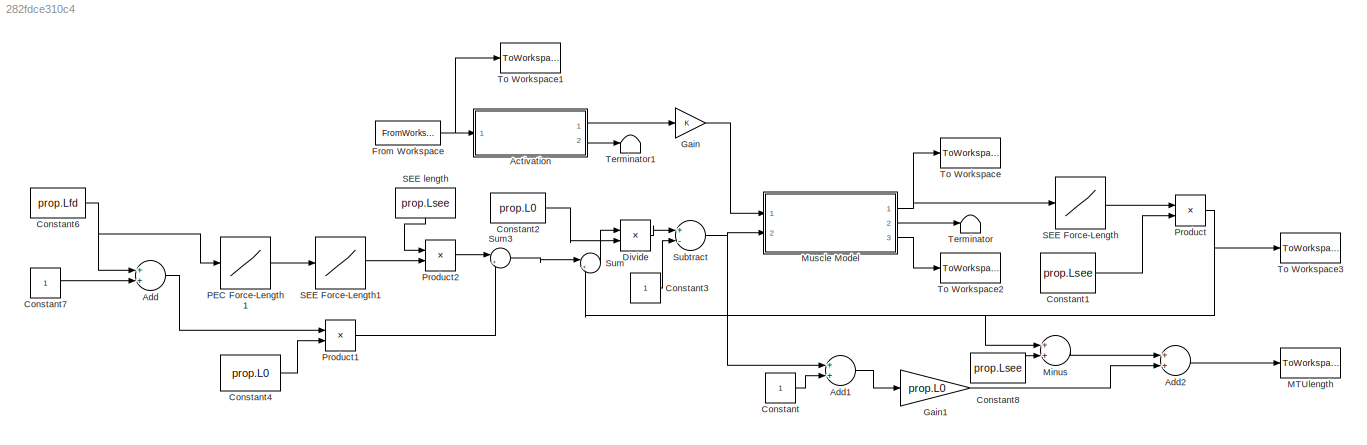
MODEL slx_282fdce310c4
KIND model
CONFIG AbsTol = auto
CONFIG EnableMultiTasking = on
CONFIG FixedStep = 0.00005
CONFIG MaxStep = 0.1
CONFIG MinStep = auto
CONFIG RelTol = 1e-6
CONFIG SampleTimeConstraint = Unconstrained
CONFIG Solver = ode45
CONFIG SolverName = ode45
CONFIG StartTime = 0.0
CONFIG StopTime = 2
BLOCK [Lookup]  PEC Force-Length1
  InputValues = [-0.400000000000000\n-0.200000000000000\n-0.0200000000000000\n-0.0181000000000000\n-0.0162000000000000\n-0.0143000000000000\n-0.0124000000000000\n-0.0105000000000001\n-0.00860000000000005\n-0.00670000000000004\n-0.00480000000000003\n-0.00290000000000001\n-0.00100000000000000\n0.000899999999999901\n0.00279999999999991\n0.00469999999999993\n0.00659999999999994\n0.00849999999999995\n0.0104000000000000\n0.01230000000000...<+5143ch>
  LookUpMeth = Interpolation-Use End Values
  Table = [0\n0\n0\n0.000250430632326719\n0.000504222699518002\n0.000761421320832001\n0.00102207222114546\n0.00128622173908269\n0.00155391683525374\n0.00182520510060293\n0.00210013476486974\n0.00237875470516303\n0.00266111445465043\n0.00294726421136441\n0.00323725484712650\n0.00353113791659126\n0.00382896566641171\n0.00413079104452780\n0.00443666770957945\n0.00474665004044605\n0.00506079314591397\n0.00537915287447376\n0.00570178...<+5180ch>
BLOCK [Lookup]  SEE Force-Length
  InputValues = [0\n0.000442588372362627\n0.00141523090125158\n0.00279339495313245\n0.00452537533502198\n0.00657919407104800\n0.00893222484804500\n0.0115672311194430\n0.0144704457093994\n0.0176305024068561\n0.0210377843976648\n0.0246839997310470\n0.0285618904861856\n0.0326650255195540\n0.0369876479916691\n0.0415245602039597\n0.0462710346715712\n0.0512227441486924\n0.0563757056643364\n0.0617262351241129\n0.0672709100207659\n0.07300653...<+1419ch>
  Table = [0\n0.000500000000000000\n0.00100000000000000\n0.00150000000000000\n0.00200000000000000\n0.00250000000000000\n0.00300000000000000\n0.00350000000000000\n0.00400000000000000\n0.00450000000000000\n0.00500000000000000\n0.00550000000000000\n0.00600000000000000\n0.00650000000000000\n0.00700000000000000\n0.00750000000000000\n0.00800000000000000\n0.00850000000000000\n0.00900000000000000\n0.00950000000000000\n0.01000000000000...<+1534ch>
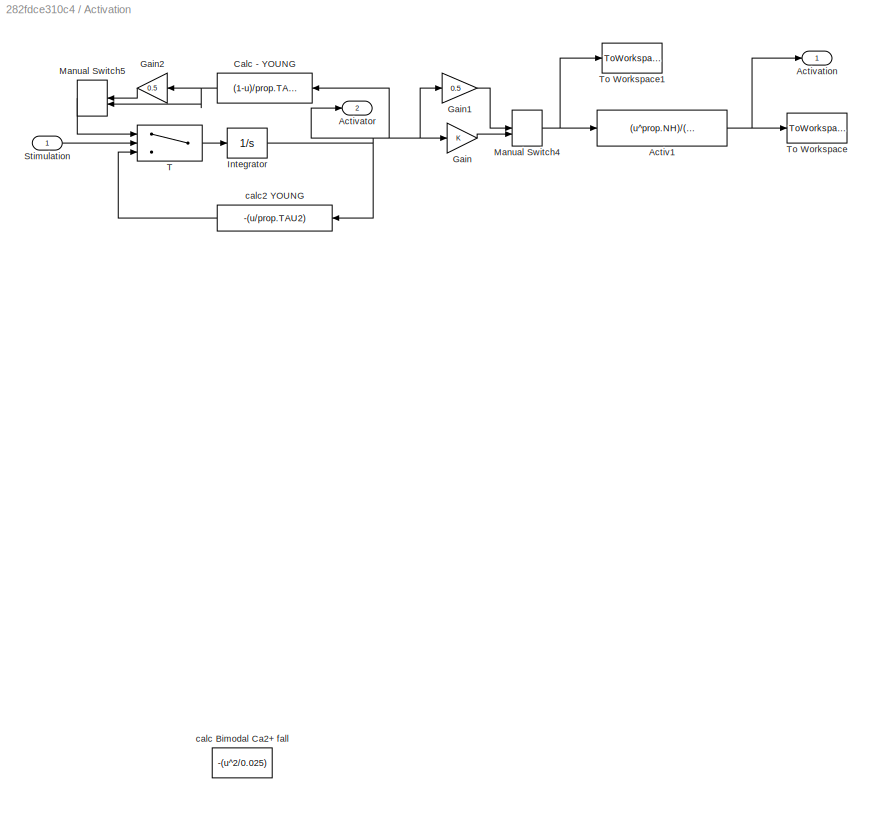
BLOCK [SubSystem] Activation
  Ports = [1, 2]
  RequestExecContextInheritance = off
BLOCK [Fcn] Activation/Activ1
  Expr = (u^prop.NH)/(prop.PCA50^prop.NH+u^prop.NH)
BLOCK [Outport] Activation/Activation
  IconDisplay = Port number
BLOCK [Outport] Activation/Activator
  IconDisplay = Port number
  Port = 2
BLOCK [Fcn] Activation/Calc - YOUNG
  Expr = (1-u)/prop.TAU1
BLOCK [Gain] Activation/Gain
  OutDataTypeStr = Inherit: Inherit via internal rule
  ParamDataTypeStr = Inherit: Inherit via internal rule
  SaturateOnIntegerOverflow = off
BLOCK [Gain] Activation/Gain1
  Gain = 0.5
  OutDataTypeStr = Inherit: Inherit via internal rule
  ParamDataTypeStr = Inherit: Inherit via internal rule
  SaturateOnIntegerOverflow = off
BLOCK [Gain] Activation/Gain2
  Gain = 0.5
  OutDataTypeStr = Inherit: Inherit via internal rule
  ParamDataTypeStr = Inherit: Inherit via internal rule
  SaturateOnIntegerOverflow = off
BLOCK [Integrator] Activation/Integrator
  Ports = [1, 1]
BLOCK [ManualSwitch] Activation/Manual Switch4
  CurrentSetting = 0
BLOCK [ManualSwitch] Activation/Manual Switch5
  CurrentSetting = 0
BLOCK [Inport] Activation/Stimulation
  IconDisplay = Port number
BLOCK [Switch] Activation/T
  Criteria = u2 > Threshold
  Threshold = 0.01
BLOCK [ToWorkspace] Activation/To Workspace
  FixptAsFi = on
  MaxDataPoints = inf
  Ports = [1]
  SampleTime = -1
  SaveFormat = Structure
  VariableName = Out_Activation
BLOCK [ToWorkspace] Activation/To Workspace1
  FixptAsFi = on
  MaxDataPoints = inf
  Ports = [1]
  SampleTime = -1
  SaveFormat = Structure
  VariableName = Out_Activator
BLOCK [Fcn] Activation/calc Bimodal Ca2+ fall
  Commented = on
  Expr = -(u^2/0.025)
BLOCK [Fcn] Activation/calc2 YOUNG
  Expr = -(u/prop.TAU2)
BLOCK [Sum] Add
  InputSameDT = off
  OutDataTypeStr = Inherit: Inherit via internal rule
  Ports = [2, 1]
  SaturateOnIntegerOverflow = off
BLOCK [Sum] Add1
  InputSameDT = off
  OutDataTypeStr = Inherit: Inherit via internal rule
  Ports = [2, 1]
  SaturateOnIntegerOverflow = off
BLOCK [Sum] Add2
  InputSameDT = off
  OutDataTypeStr = Inherit: Inherit via internal rule
  Ports = [2, 1]
  SaturateOnIntegerOverflow = off
BLOCK [Constant] Constant
BLOCK [Constant] Constant1
  Value = prop.Lsee
BLOCK [Constant] Constant2
  Value = prop.L0
BLOCK [Constant] Constant3
BLOCK [Constant] Constant4
  Value = prop.L0
BLOCK [Constant] Constant6
  Value = prop.Lfd
BLOCK [Constant] Constant7
BLOCK [Constant] Constant8
  Value = prop.Lsee
BLOCK [Product] Divide
  InputSameDT = off
  Inputs = */
  OutDataTypeStr = Inherit: Inherit via internal rule
  Ports = [2, 1]
  RndMeth = Floor
  SaturateOnIntegerOverflow = off
BLOCK [FromWorkspace] From Workspace
  SampleTime = 1/10000
  VariableName = data_in
  ZeroCross = on
BLOCK [Gain] Gain
  OutDataTypeStr = Inherit: Inherit via internal rule
  ParamDataTypeStr = Inherit: Inherit via internal rule
  SaturateOnIntegerOverflow = off
BLOCK [Gain] Gain1
  Gain = prop.L0
  OutDataTypeStr = Inherit: Inherit via internal rule
  ParamDataTypeStr = Inherit: Inherit via internal rule
  SaturateOnIntegerOverflow = off
BLOCK [ToWorkspace] MTUlength
  FixptAsFi = on
  MaxDataPoints = inf
  Ports = [1]
  SampleTime = -1
  SaveFormat = Structure With Time
  VariableName = Out_MTUlength
BLOCK [Sum] Minus
  InputSameDT = off
  OutDataTypeStr = Inherit: Inherit via internal rule
  Ports = [2, 1]
  SaturateOnIntegerOverflow = off
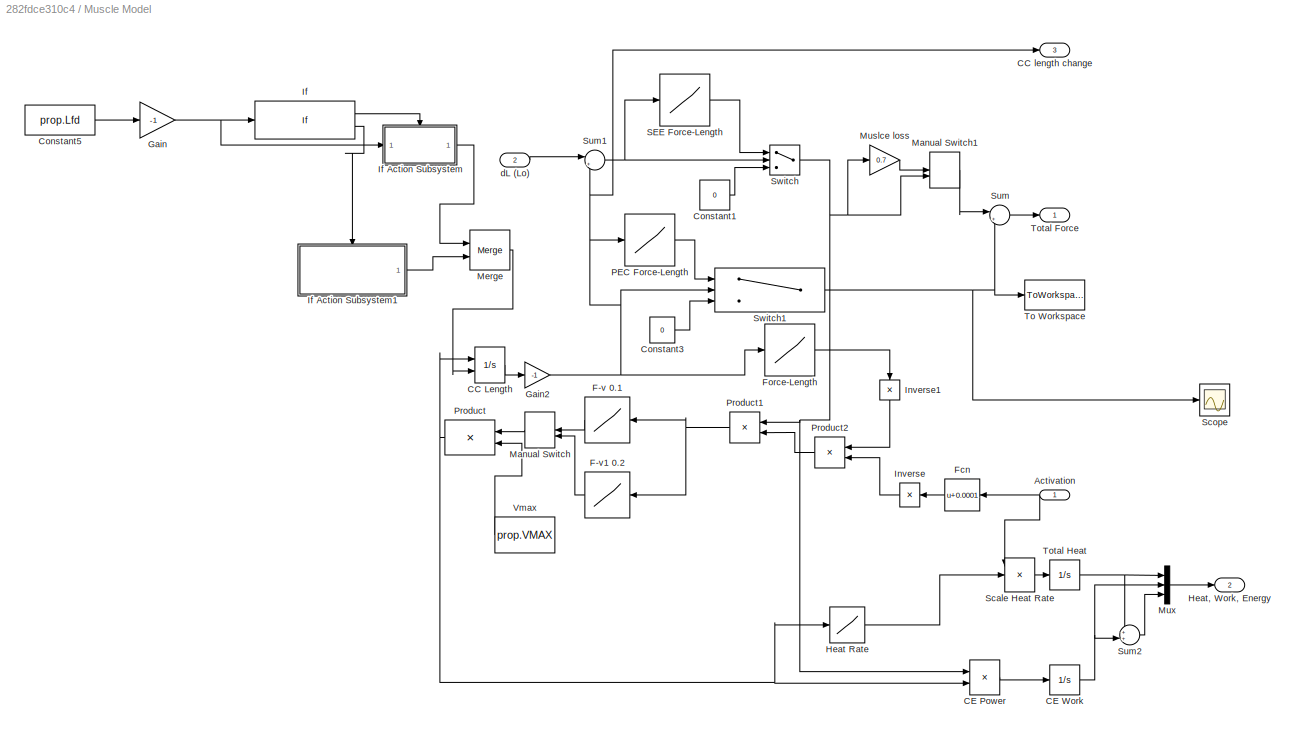
BLOCK [SubSystem] Muscle Model
  Ports = [2, 3]
  RequestExecContextInheritance = off
BLOCK [Lookup] Muscle Model/ PEC Force-Length
  InputValues = [-0.400000000000000\n-0.200000000000000\n-0.0200000000000000\n-0.0181000000000000\n-0.0162000000000000\n-0.0143000000000000\n-0.0124000000000000\n-0.0105000000000001\n-0.00860000000000005\n-0.00670000000000004\n-0.00480000000000003\n-0.00290000000000001\n-0.00100000000000000\n0.000899999999999901\n0.00279999999999991\n0.00469999999999993\n0.00659999999999994\n0.00849999999999995\n0.0104000000000000\n0.01230000000000...<+5143ch>
  LookUpMeth = Interpolation-Use End Values
  Table = [0\n0\n0\n0.000250430632326719\n0.000504222699518002\n0.000761421320832001\n0.00102207222114546\n0.00128622173908269\n0.00155391683525374\n0.00182520510060293\n0.00210013476486974\n0.00237875470516303\n0.00266111445465043\n0.00294726421136441\n0.00323725484712650\n0.00353113791659126\n0.00382896566641171\n0.00413079104452780\n0.00443666770957945\n0.00474665004044605\n0.00506079314591397\n0.00537915287447376\n0.00570178...<+5180ch>
BLOCK [Lookup] Muscle Model/ SEE Force-Length
  InputValues = [0	0.000307500000000000	0.000615000000000000	0.000922500000000000	0.00123000000000000	0.00153750000000000	0.00184500000000000	0.00215250000000000	0.00246000000000000	0.00276750000000000	0.00307500000000000	0.00338250000000000	0.00369000000000000	0.00399750000000000	0.00430500000000000	0.00461250000000000	0.00492000000000000	0.00522750000000000	0.00553500000000000	0.00584250000000000	0.006150000000...<+2967ch>
  Table = [0	0.00315148521792809	0.00639307550345235	0.00972214173787414	0.0131361852684884	0.0166330114108767	0.0202109175533428	0.0238680843222504	0.0276028559259340	0.0314140019968368	0.0353002070911181	0.0392601876342754	0.0432929308496600	0.0473975346467821	0.0515729721321880	0.0558183428644246	0.0601330833213969	0.0645163532067705	0.0689673633359375	0.0734857032929654	0.0780707374529544	0.082721799913...<+2760ch>
BLOCK [Inport] Muscle Model/Activation
  IconDisplay = Port number
BLOCK [Integrator] Muscle Model/CC Length
  InitialConditionSource = external
  Ports = [2, 1]
  ZeroCross = off
BLOCK [Outport] Muscle Model/CC length change
  IconDisplay = Port number
  Port = 3
BLOCK [Product] Muscle Model/CE Power
  Commented = on
  Ports = [2, 1]
  RndMeth = Floor
BLOCK [Integrator] Muscle Model/CE Work
  Commented = on
  Ports = [1, 1]
BLOCK [Constant] Muscle Model/Constant1
  Value = 0
BLOCK [Constant] Muscle Model/Constant3
  Value = 0
BLOCK [Constant] Muscle Model/Constant5
  Value = prop.Lfd
BLOCK [Lookup] Muscle Model/F-v 0.1
  InputValues = [0\n0.0200000000000000\n0.0400000000000000\n0.0600000000000000\n0.0800000000000000\n0.100000000000000\n0.120000000000000\n0.140000000000000\n0.160000000000000\n0.180000000000000\n0.200000000000000\n0.220000000000000\n0.240000000000000\n0.260000000000000\n0.280000000000000\n0.300000000000000\n0.320000000000000\n0.340000000000000\n0.360000000000000\n0.380000000000000\n0.400000000000000\n0.420000000000000\n0.4400000000000...<+2193ch>
  OutDataTypeStr = double
  Table = [1\n0.816666666666667\n0.685714285714286\n0.587500000000000\n0.511111111111111\n0.450000000000000\n0.400000000000000\n0.358333333333333\n0.323076923076923\n0.292857142857143\n0.266666666666667\n0.243750000000000\n0.223529411764706\n0.205555555555556\n0.189473684210526\n0.175000000000000\n0.161904761904762\n0.150000000000000\n0.139130434782609\n0.129166666666667\n0.120000000000000\n0.111538461538462\n0.103703703703704\n0...<+2413ch>
BLOCK [Lookup] Muscle Model/F-v1 0.2
  InputValues = [0\n0.0200000000000000\n0.0400000000000000\n0.0600000000000000\n0.0800000000000000\n0.100000000000000\n0.120000000000000\n0.140000000000000\n0.160000000000000\n0.180000000000000\n0.200000000000000\n0.220000000000000\n0.240000000000000\n0.260000000000000\n0.280000000000000\n0.300000000000000\n0.320000000000000\n0.340000000000000\n0.360000000000000\n0.380000000000000\n0.400000000000000\n0.420000000000000\n0.4400000000000...<+2193ch>
  OutDataTypeStr = double
  Table = [1\n0.890909090909091\n0.800000000000000\n0.723076923076923\n0.657142857142857\n0.600000000000000\n0.550000000000000\n0.505882352941176\n0.466666666666667\n0.431578947368421\n0.400000000000000\n0.371428571428571\n0.345454545454546\n0.321739130434783\n0.300000000000000\n0.280000000000000\n0.261538461538462\n0.244444444444444\n0.228571428571429\n0.213793103448276\n0.200000000000000\n0.187096774193548\n0.175000000000000\n0...<+2403ch>
BLOCK [Fcn] Muscle Model/Fcn
  Expr = u+0.0001
BLOCK [Lookup] Muscle Model/Force-Length
  InputValues = [-0.390887290167866	-0.386678412372143	-0.382469534576421	-0.378260656780698	-0.374051778984975	-0.369842901189253	-0.365634023393530	-0.361425145597808	-0.357216267802085	-0.353007390006362	-0.348798512210640	-0.344589634414917	-0.340380756619194	-0.336171878823472	-0.331963001027749	-0.327754123232027	-0.323545245436304	-0.319336367640582	-0.315127489844859	-0.310918612049136	-0.306709734253414	...<+4535ch>
  Table = [0	0.0183673469387755	0.0367346938775510	0.0551020408163265	0.0734693877551021	0.0918367346938776	0.110204081632653	0.128571428571429	0.146938775510204	0.165306122448980	0.183673469387755	0.202040816326531	0.220408163265306	0.238775510204082	0.257142857142857	0.275510204081633	0.293877551020408	0.312244897959184	0.330612244897959	0.348979591836735	0.367346938775510	0.385714285714286	0.404081632653...<+4059ch>
BLOCK [Gain] Muscle Model/Gain
  Gain = -1
  OutDataTypeStr = Inherit: Inherit via internal rule
  ParamDataTypeStr = Inherit: Inherit via internal rule
  SaturateOnIntegerOverflow = off
BLOCK [Gain] Muscle Model/Gain2
  Gain = -1
BLOCK [Lookup] Muscle Model/Heat Rate
  Commented = on
  InputValues = [   -3.0000\n   -2.9500\n   -2.9000\n   -2.8500\n   -2.8000\n   -2.7500\n   -2.7000\n   -2.6500\n   -2.6000\n   -2.5500\n   -2.5000\n   -2.4500\n   -2.4000\n   -2.3500\n   -2.3000\n   -2.2500\n   -2.2000\n   -2.1500\n   -2.1000\n   -2.0500\n   -2.0000\n   -1.9500\n   -1.9000\n   -1.8500\n   -1.8000\n   -1.7500\n   -1.7000\n   -1.6500\n   -1.6000\n   -1.5500\n   -1.5000\n   -1.4500\n   -1.4000\n   -1.3500\n   -1.3000\n   -1.2500\n   ...<+1593ch>
  LookUpMeth = Interpolation-Use End Values
  SaturateOnIntegerOverflow = off
  Table = [    0.9631\n    0.9637\n    0.9643\n    0.9649\n    0.9655\n    0.9661\n    0.9668\n    0.9674\n    0.9680\n    0.9686\n    0.9692\n    0.9698\n    0.9705\n    0.9711\n    0.9717\n    0.9723\n    0.9729\n    0.9735\n    0.9741\n    0.9748\n    0.9754\n    0.9760\n    0.9766\n    0.9772\n    0.9778\n    0.9785\n    0.9791\n    0.9797\n    0.9803\n    0.9809\n    0.9815\n    0.9821\n    0.9828\n    0.9834\n    0.9840\n    0.9846\n   ...<+1593ch>
BLOCK [Outport] Muscle Model/Heat, Work, Energy
  IconDisplay = Port number
  Port = 2
BLOCK [If] Muscle Model/If
  IfExpression = u1 <= +0.02
  Ports = [1, 2]
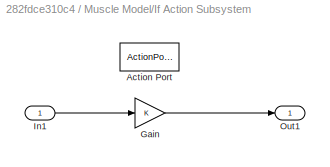
BLOCK [SubSystem] Muscle Model/If Action Subsystem
  Ports = [1, 1, 0, 0, 0, 0, 0, 1]
  RequestExecContextInheritance = off
  TreatAsAtomicUnit = on
BLOCK [ActionPort] Muscle Model/If Action Subsystem/Action Port
  ActionPortLabel = if(u1 <= +0.02)
BLOCK [Gain] Muscle Model/If Action Subsystem/Gain
  OutDataTypeStr = Inherit: Inherit via internal rule
  ParamDataTypeStr = Inherit: Inherit via internal rule
  SaturateOnIntegerOverflow = off
BLOCK [Inport] Muscle Model/If Action Subsystem/In1
  IconDisplay = Port number
BLOCK [Outport] Muscle Model/If Action Subsystem/Out1
  IconDisplay = Port number
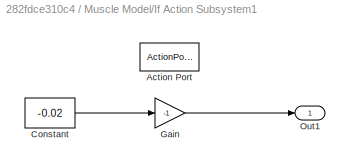
BLOCK [SubSystem] Muscle Model/If Action Subsystem1
  Ports = [0, 1, 0, 0, 0, 0, 0, 1]
  RequestExecContextInheritance = off
  TreatAsAtomicUnit = on
BLOCK [ActionPort] Muscle Model/If Action Subsystem1/Action Port
  ActionPortLabel = else
BLOCK [Constant] Muscle Model/If Action Subsystem1/Constant
  Value = -0.02
BLOCK [Gain] Muscle Model/If Action Subsystem1/Gain
  Gain = -1
  OutDataTypeStr = Inherit: Inherit via internal rule
  ParamDataTypeStr = Inherit: Inherit via internal rule
  SaturateOnIntegerOverflow = off
BLOCK [Outport] Muscle Model/If Action Subsystem1/Out1
  IconDisplay = Port number
  InitialOutput = 0.001
BLOCK [Product] Muscle Model/Inverse
  Inputs = /
  Ports = [1, 1]
  RndMeth = Floor
BLOCK [Product] Muscle Model/Inverse1
  Inputs = /
  Ports = [1, 1]
  RndMeth = Floor
BLOCK [ManualSwitch] Muscle Model/Manual Switch
BLOCK [ManualSwitch] Muscle Model/Manual Switch1
  CurrentSetting = 0
BLOCK [Merge] Muscle Model/Merge
  Ports = [2, 1]
BLOCK [Gain] Muscle Model/Muslce loss
  Gain = 0.7
  OutDataTypeStr = Inherit: Inherit via internal rule
  ParamDataTypeStr = Inherit: Inherit via internal rule
  SaturateOnIntegerOverflow = off
BLOCK [Mux] Muscle Model/Mux
  Commented = on
  DisplayOption = bar
  Inputs = 3
  Ports = [3, 1]
BLOCK [Product] Muscle Model/Product
  InputSameDT = off
  Ports = [2, 1]
  RndMeth = Floor
BLOCK [Product] Muscle Model/Product1
  Ports = [2, 1]
  RndMeth = Floor
BLOCK [Product] Muscle Model/Product2
  Ports = [2, 1]
  RndMeth = Floor
BLOCK [Product] Muscle Model/Scale Heat Rate
  Commented = on
  Inputs = 3
  Ports = [3, 1]
  RndMeth = Floor
BLOCK [Scope] Muscle Model/Scope
  Floating = off
  NumInputPorts = 1
  Ports = [1]
  ScopeSpecificationString = Simulink.scopes.TimeScopeBlockCfg('CurrentConfiguration', extmgr.ConfigurationSet(extmgr.Configuration('Core','General UI',true),extmgr.Configuration('Core','Source UI',true),extmgr.Configuration('Sources','WiredSimulink',true),extmgr.Configuration('Visuals','Time Domain',true,'SerializedDisplays',{struct('MinYLimReal','0.02322','MaxYLimReal','0.09651','YLabelReal','','MinYLimMag','0.02322','MaxYL...<+1356ch>
BLOCK [Sum] Muscle Model/Sum
  IconShape = round
  InputSameDT = off
  Inputs = |++
  OutDataTypeStr = Inherit: Inherit via internal rule
  Ports = [2, 1]
BLOCK [Sum] Muscle Model/Sum1
  IconShape = round
  Inputs = |+-
  Ports = [2, 1]
BLOCK [Sum] Muscle Model/Sum2
  Commented = on
  IconShape = round
  InputSameDT = off
  Inputs = ++|
  OutDataTypeStr = Inherit: Inherit via internal rule
  Ports = [2, 1]
  SaturateOnIntegerOverflow = off
BLOCK [Switch] Muscle Model/Switch
  InputSameDT = off
  ZeroCross = off
BLOCK [Switch] Muscle Model/Switch1
  InputSameDT = off
  Threshold = -0.02
  ZeroCross = off
BLOCK [ToWorkspace] Muscle Model/To Workspace
  FixptAsFi = on
  MaxDataPoints = inf
  Ports = [1]
  SampleTime = -1
  SaveFormat = Structure With Time
  VariableName = Out_PECforce
BLOCK [Outport] Muscle Model/Total Force
  IconDisplay = Port number
BLOCK [Integrator] Muscle Model/Total Heat
  Commented = on
  Ports = [1, 1]
BLOCK [Constant] Muscle Model/Vmax
  Value = prop.VMAX
BLOCK [Inport] Muscle Model/dL (Lo)
  IconDisplay = Port number
  Port = 2
BLOCK [Product] Product
  InputSameDT = off
  OutDataTypeStr = Inherit: Inherit via internal rule
  Ports = [2, 1]
  RndMeth = Floor
  SaturateOnIntegerOverflow = off
BLOCK [Product] Product1
  InputSameDT = off
  OutDataTypeStr = Inherit: Inherit via internal rule
  Ports = [2, 1]
  RndMeth = Floor
  SaturateOnIntegerOverflow = off
BLOCK [Product] Product2
  InputSameDT = off
  OutDataTypeStr = Inherit: Inherit via internal rule
  Ports = [2, 1]
  RndMeth = Floor
  SaturateOnIntegerOverflow = off
BLOCK [Lookup] SEE Force-Length1
  InputValues = [0\n0.000442588372362627\n0.00141523090125158\n0.00279339495313245\n0.00452537533502198\n0.00657919407104800\n0.00893222484804500\n0.0115672311194430\n0.0144704457093994\n0.0176305024068561\n0.0210377843976648\n0.0246839997310470\n0.0285618904861856\n0.0326650255195540\n0.0369876479916691\n0.0415245602039597\n0.0462710346715712\n0.0512227441486924\n0.0563757056643364\n0.0617262351241129\n0.0672709100207659\n0.07300653...<+1419ch>
  Table = [0\n0.000500000000000000\n0.00100000000000000\n0.00150000000000000\n0.00200000000000000\n0.00250000000000000\n0.00300000000000000\n0.00350000000000000\n0.00400000000000000\n0.00450000000000000\n0.00500000000000000\n0.00550000000000000\n0.00600000000000000\n0.00650000000000000\n0.00700000000000000\n0.00750000000000000\n0.00800000000000000\n0.00850000000000000\n0.00900000000000000\n0.00950000000000000\n0.01000000000000...<+1534ch>
BLOCK [Constant] SEE length
  Value = prop.Lsee
BLOCK [Sum] Subtract
  InputSameDT = off
  Inputs = +-
  OutDataTypeStr = Inherit: Inherit via internal rule
  Ports = [2, 1]
  SaturateOnIntegerOverflow = off
BLOCK [Sum] Sum
  IconShape = round
  InputSameDT = off
  Inputs = |+-
  OutDataTypeStr = Inherit: Inherit via internal rule
  Ports = [2, 1]
  SaturateOnIntegerOverflow = off
BLOCK [Sum] Sum3
  IconShape = round
  InputSameDT = off
  Inputs = |++
  OutDataTypeStr = Inherit: Inherit via internal rule
  Ports = [2, 1]
  SaturateOnIntegerOverflow = off
BLOCK [Terminator] Terminator
BLOCK [Terminator] Terminator1
BLOCK [ToWorkspace] To Workspace
  FixptAsFi = on
  MaxDataPoints = inf
  Ports = [1]
  SampleTime = -1
  SaveFormat = Structure
  VariableName = Out_CCforce
BLOCK [ToWorkspace] To Workspace1
  FixptAsFi = on
  MaxDataPoints = inf
  Ports = [1]
  SampleTime = -1
  SaveFormat = Structure
  VariableName = Out_Stimulation
BLOCK [ToWorkspace] To Workspace2
  FixptAsFi = on
  MaxDataPoints = inf
  Ports = [1]
  SampleTime = -1
  SaveFormat = Structure With Time
  VariableName = Out_CClength
BLOCK [ToWorkspace] To Workspace3
  FixptAsFi = on
  MaxDataPoints = inf
  Ports = [1]
  SampleTime = -1
  SaveFormat = Structure With Time
  VariableName = Out_SEElength
LINE  PEC Force-Length1:1 -> SEE Force-Length1:1
LINE  SEE Force-Length:1 -> Product:1
NET Activation/Activ1:1 -> Activation/Activation:1, Activation/To Workspace:1
NET Activation/Calc - YOUNG:1 -> Activation/Gain2:1, Activation/Manual Switch5:2
LINE Activation/Gain1:1 -> Activation/Manual Switch4:1
LINE Activation/Gain2:1 -> Activation/Manual Switch5:1
LINE Activation/Gain:1 -> Activation/Manual Switch4:2
NET Activation/Integrator:1 -> Activation/Activator:1, Activation/Calc - YOUNG:1, Activation/Gain1:1, Activation/Gain:1, Activation/calc2 YOUNG:1
NET Activation/Manual Switch4:1 -> Activation/Activ1:1, Activation/To Workspace1:1
LINE Activation/Manual Switch5:1 -> Activation/T:1
LINE Activation/Stimulation:1 -> Activation/T:2
LINE Activation/T:1 -> Activation/Integrator:1
LINE Activation/calc2 YOUNG:1 -> Activation/T:3
LINE Activation:1 -> Gain:1
LINE Activation:2 -> Terminator1:1
LINE Add1:1 -> Gain1:1
LINE Add2:1 -> MTUlength:1
LINE Add:1 -> Product1:1
LINE Constant1:1 -> Product:2
LINE Constant2:1 -> Divide:2
LINE Constant3:1 -> Subtract:2
LINE Constant4:1 -> Product1:2
NET Constant6:1 ->  PEC Force-Length1:1, Add:1
LINE Constant7:1 -> Add:2
LINE Constant8:1 -> Minus:2
LINE Constant:1 -> Add1:2
LINE Divide:1 -> Subtract:1
NET From Workspace:1 -> Activation:1, To Workspace1:1
LINE Gain1:1 -> Add2:2
LINE Gain:1 -> Muscle Model:1
LINE Minus:1 -> Add2:1
LINE Muscle Model/ PEC Force-Length:1 -> Muscle Model/Switch1:1
LINE Muscle Model/ SEE Force-Length:1 -> Muscle Model/Switch:1
NET Muscle Model/Activation:1 -> Muscle Model/Fcn:1, Muscle Model/Scale Heat Rate:1
LINE Muscle Model/CC Length:1 -> Muscle Model/Gain2:1
LINE Muscle Model/CE Power:1 -> Muscle Model/CE Work:1
NET Muscle Model/CE Work:1 -> Muscle Model/Mux:2, Muscle Model/Sum2:2
LINE Muscle Model/Constant1:1 -> Muscle Model/Switch:3
LINE Muscle Model/Constant3:1 -> Muscle Model/Switch1:3
LINE Muscle Model/Constant5:1 -> Muscle Model/Gain:1
LINE Muscle Model/F-v 0.1:1 -> Muscle Model/Manual Switch:1
LINE Muscle Model/F-v1 0.2:1 -> Muscle Model/Manual Switch:2
LINE Muscle Model/Fcn:1 -> Muscle Model/Inverse:1
LINE Muscle Model/Force-Length:1 -> Muscle Model/Inverse1:1
NET Muscle Model/Gain2:1 -> Muscle Model/ PEC Force-Length:1, Muscle Model/CC length change:1, Muscle Model/Force-Length:1, Muscle Model/Sum1:2, Muscle Model/Switch1:2
NET Muscle Model/Gain:1 -> Muscle Model/If Action Subsystem:1, Muscle Model/If:1
LINE Muscle Model/Heat Rate:1 -> Muscle Model/Scale Heat Rate:2
LINE Muscle Model/If Action Subsystem/Gain:1 -> Muscle Model/If Action Subsystem/Out1:1
LINE Muscle Model/If Action Subsystem/In1:1 -> Muscle Model/If Action Subsystem/Gain:1
LINE Muscle Model/If Action Subsystem1/Constant:1 -> Muscle Model/If Action Subsystem1/Gain:1
LINE Muscle Model/If Action Subsystem1/Gain:1 -> Muscle Model/If Action Subsystem1/Out1:1
LINE Muscle Model/If Action Subsystem1:1 -> Muscle Model/Merge:2
LINE Muscle Model/If Action Subsystem:1 -> Muscle Model/Merge:1
LINE Muscle Model/If:1 -> Muscle Model/If Action Subsystem:ifaction
LINE Muscle Model/If:2 -> Muscle Model/If Action Subsystem1:ifaction
LINE Muscle Model/Inverse1:1 -> Muscle Model/Product2:1
LINE Muscle Model/Inverse:1 -> Muscle Model/Product2:2
LINE Muscle Model/Manual Switch1:1 -> Muscle Model/Sum:1
LINE Muscle Model/Manual Switch:1 -> Muscle Model/Product:1
LINE Muscle Model/Merge:1 -> Muscle Model/CC Length:2
LINE Muscle Model/Muslce loss:1 -> Muscle Model/Manual Switch1:1
LINE Muscle Model/Mux:1 -> Muscle Model/Heat, Work, Energy:1
NET Muscle Model/Product1:1 -> Muscle Model/F-v 0.1:1, Muscle Model/F-v1 0.2:1
LINE Muscle Model/Product2:1 -> Muscle Model/Product1:2
NET Muscle Model/Product:1 -> Muscle Model/CC Length:1, Muscle Model/CE Power:2, Muscle Model/Heat Rate:1
LINE Muscle Model/Scale Heat Rate:1 -> Muscle Model/Total Heat:1
NET Muscle Model/Sum1:1 -> Muscle Model/ SEE Force-Length:1, Muscle Model/Switch:2
LINE Muscle Model/Sum2:1 -> Muscle Model/Mux:3
LINE Muscle Model/Sum:1 -> Muscle Model/Total Force:1
NET Muscle Model/Switch1:1 -> Muscle Model/Scope:1, Muscle Model/Sum:2, Muscle Model/To Workspace:1
NET Muscle Model/Switch:1 -> Muscle Model/CE Power:1, Muscle Model/Manual Switch1:2, Muscle Model/Muslce loss:1, Muscle Model/Product1:1
NET Muscle Model/Total Heat:1 -> Muscle Model/Mux:1, Muscle Model/Sum2:1
LINE Muscle Model/Vmax:1 -> Muscle Model/Product:2
LINE Muscle Model/dL (Lo):1 -> Muscle Model/Sum1:1
NET Muscle Model:1 ->  SEE Force-Length:1, To Workspace:1
LINE Muscle Model:2 -> Terminator:1
LINE Muscle Model:3 -> To Workspace2:1
LINE Product1:1 -> Sum3:2
LINE Product2:1 -> Sum3:1
NET Product:1 -> Minus:1, Sum:2, To Workspace3:1
LINE SEE Force-Length1:1 -> Product2:2
LINE SEE length:1 -> Product2:1
NET Subtract:1 -> Add1:1, Muscle Model:2
LINE Sum3:1 -> Sum:1
LINE Sum:1 -> Divide:1
note: NET lines group one-source signal fan-out (src -> all destinations, sorted); 1:1 wires keep LINE
